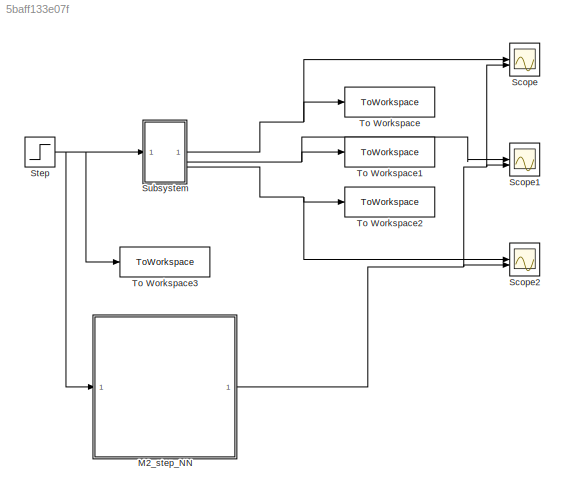
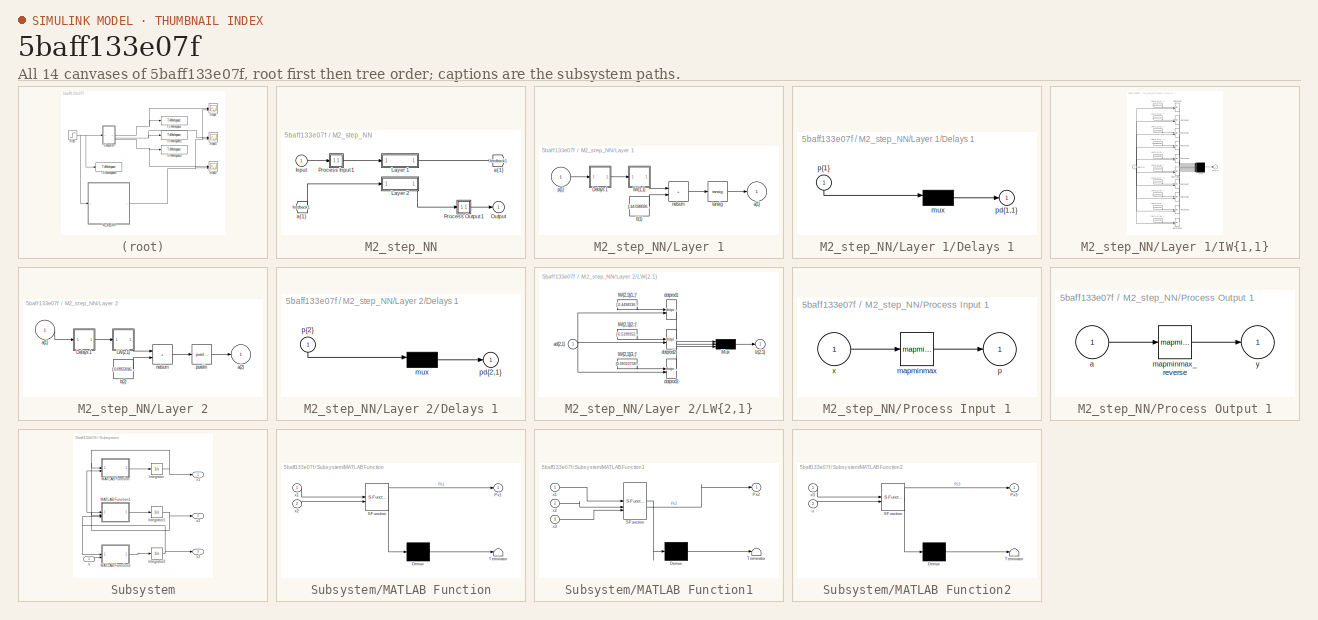
[diagram: thumbnail index - all 14 canvases of the model, root first then tree order]
MODEL slx_5baff133e07f
KIND model
CONFIG AbsTol = auto
CONFIG EnableMultiTasking = off
CONFIG FixedStep = auto
CONFIG MaxStep = auto
CONFIG MinStep = auto
CONFIG RelTol = 1e-3
CONFIG SampleTimeConstraint = Unconstrained
CONFIG SolverName = VariableStepAuto
CONFIG StartTime = 0.0
CONFIG StopTime = 10.0
BLOCK [SubSystem] M2_step_NN
BLOCK [From] M2_step_NN/ a{1} 
  GotoTag = feedback1
BLOCK [Inport] M2_step_NN/Input
  PortDimensions = 1
BLOCK [SubSystem] M2_step_NN/Layer 1
BLOCK [SubSystem] M2_step_NN/Layer 1/Delays 1
BLOCK [Mux] M2_step_NN/Layer 1/Delays 1/mux
  Inputs = 1
BLOCK [Outport] M2_step_NN/Layer 1/Delays 1/pd{1,1}
BLOCK [Inport] M2_step_NN/Layer 1/Delays 1/p{1}
  NameLocation = left
  PortDimensions = 1
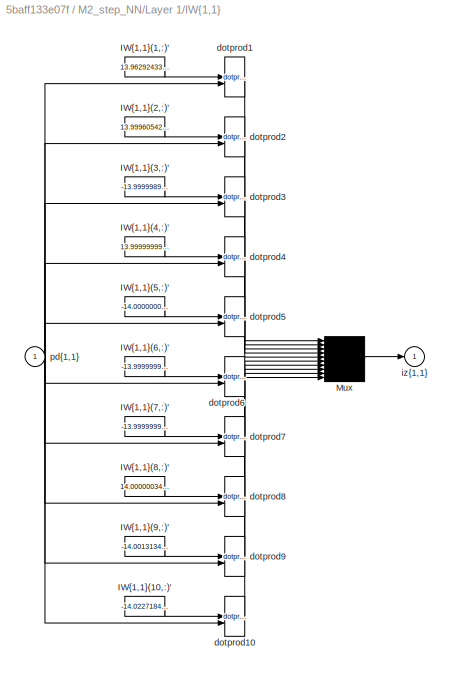
BLOCK [SubSystem] M2_step_NN/Layer 1/IW{1,1}
BLOCK [Constant] M2_step_NN/Layer 1/IW{1,1}/IW{1,1}(1,:)'
  Value = 13.9629243373705609343460309901274740695953369140625
BLOCK [Constant] M2_step_NN/Layer 1/IW{1,1}/IW{1,1}(10,:)'
  Value = -14.0227184452584463514313029008917510509490966796875
BLOCK [Constant] M2_step_NN/Layer 1/IW{1,1}/IW{1,1}(2,:)'
  Value = 13.9996054288032834023169925785623490810394287109375
BLOCK [Constant] M2_step_NN/Layer 1/IW{1,1}/IW{1,1}(3,:)'
  Value = -13.9999989318374815638890140689909458160400390625
BLOCK [Constant] M2_step_NN/Layer 1/IW{1,1}/IW{1,1}(4,:)'
  Value = 13.999999997360529135903561837039887905120849609375
BLOCK [Constant] M2_step_NN/Layer 1/IW{1,1}/IW{1,1}(5,:)'
  Value = -14.0000000000076312289820634759962558746337890625
BLOCK [Constant] M2_step_NN/Layer 1/IW{1,1}/IW{1,1}(6,:)'
  Value = -13.999999999987590371119949850253760814666748046875
BLOCK [Constant] M2_step_NN/Layer 1/IW{1,1}/IW{1,1}(7,:)'
  Value = -13.999999996540839930503352661617100238800048828125
BLOCK [Constant] M2_step_NN/Layer 1/IW{1,1}/IW{1,1}(8,:)'
  Value = 14.00000034104697732573185930959880352020263671875
BLOCK [Constant] M2_step_NN/Layer 1/IW{1,1}/IW{1,1}(9,:)'
  Value = -14.00131346372154439450241625308990478515625
BLOCK [Mux] M2_step_NN/Layer 1/IW{1,1}/Mux
  Inputs = 10
BLOCK [Reference] M2_step_NN/Layer 1/IW{1,1}/dotprod1  REF=neural/Weight Functions/dotprod
  SourceBlock = neural/Weight Functions/dotprod
  SourceType = DOTPROD
BLOCK [Reference] M2_step_NN/Layer 1/IW{1,1}/dotprod10  REF=neural/Weight Functions/dotprod
  SourceBlock = neural/Weight Functions/dotprod
  SourceType = DOTPROD
BLOCK [Reference] M2_step_NN/Layer 1/IW{1,1}/dotprod2  REF=neural/Weight Functions/dotprod
  SourceBlock = neural/Weight Functions/dotprod
  SourceType = DOTPROD
BLOCK [Reference] M2_step_NN/Layer 1/IW{1,1}/dotprod3  REF=neural/Weight Functions/dotprod
  SourceBlock = neural/Weight Functions/dotprod
  SourceType = DOTPROD
BLOCK [Reference] M2_step_NN/Layer 1/IW{1,1}/dotprod4  REF=neural/Weight Functions/dotprod
  SourceBlock = neural/Weight Functions/dotprod
  SourceType = DOTPROD
BLOCK [Reference] M2_step_NN/Layer 1/IW{1,1}/dotprod5  REF=neural/Weight Functions/dotprod
  SourceBlock = neural/Weight Functions/dotprod
  SourceType = DOTPROD
BLOCK [Reference] M2_step_NN/Layer 1/IW{1,1}/dotprod6  REF=neural/Weight Functions/dotprod
  SourceBlock = neural/Weight Functions/dotprod
  SourceType = DOTPROD
BLOCK [Reference] M2_step_NN/Layer 1/IW{1,1}/dotprod7  REF=neural/Weight Functions/dotprod
  SourceBlock = neural/Weight Functions/dotprod
  SourceType = DOTPROD
BLOCK [Reference] M2_step_NN/Layer 1/IW{1,1}/dotprod8  REF=neural/Weight Functions/dotprod
  SourceBlock = neural/Weight Functions/dotprod
  SourceType = DOTPROD
BLOCK [Reference] M2_step_NN/Layer 1/IW{1,1}/dotprod9  REF=neural/Weight Functions/dotprod
  SourceBlock = neural/Weight Functions/dotprod
  SourceType = DOTPROD
BLOCK [Outport] M2_step_NN/Layer 1/IW{1,1}/iz{1,1}
BLOCK [Inport] M2_step_NN/Layer 1/IW{1,1}/pd{1,1}
  PortDimensions = 1
BLOCK [Outport] M2_step_NN/Layer 1/a{1}
  InitialOutput = [0;0;0;0;0;0;0;0;0;0]
BLOCK [Constant] M2_step_NN/Layer 1/b{1}
  Value = [-14.0380261568897726220939148333854973316192626953125;-10.889281657369526357115319115109741687774658203125;7.77777884631047555785698932595551013946533203125;-4.666666669303321413053708965890109539031982421875;1.555555555548202573135085913236252963542938232421875;-1.5555555555661033650949320872314274311065673828125;-4.66666667010798352777101172250695526599884033203125;7.777777422985467481453270011...<+125ch>
BLOCK [Sum] M2_step_NN/Layer 1/netsum
  IconShape = rectangular
  InputSameDT = on
  Inputs = 2
  OutDataTypeStr = Inherit: Same as first input
  SaturateOnIntegerOverflow = on
BLOCK [Inport] M2_step_NN/Layer 1/p{1}
  PortDimensions = 1
BLOCK [Reference] M2_step_NN/Layer 1/tansig  REF=neural/Transfer Functions/tansig
  SourceBlock = neural/Transfer Functions/tansig
  SourceType = TANSIG
BLOCK [SubSystem] M2_step_NN/Layer 2
BLOCK [SubSystem] M2_step_NN/Layer 2/Delays 1
BLOCK [Mux] M2_step_NN/Layer 2/Delays 1/mux
  Inputs = 1
BLOCK [Outport] M2_step_NN/Layer 2/Delays 1/pd{2,1}
BLOCK [Inport] M2_step_NN/Layer 2/Delays 1/p{2}
  NameLocation = left
  PortDimensions = 10
BLOCK [SubSystem] M2_step_NN/Layer 2/LW{2,1}
BLOCK [Constant] M2_step_NN/Layer 2/LW{2,1}/IW{2,1}(1,:)'
  Value = [-0.44982362980774859284593958363984711468219757080078125;-0.10189517144269533144296246973681263625621795654296875;0.25682911316904777354608313544304110109806060791015625;0.218601639573847983388787952208076603710651397705078125;-0.5052279260442962272037448201444931328296661376953125;-0.446107972848463651960315701217041350901126861572265625;-0.750542629301818475795471385936252772808074951171875;-0....<+162ch>
BLOCK [Constant] M2_step_NN/Layer 2/LW{2,1}/IW{2,1}(2,:)'
  Value = [-0.51993521148048227331628368119709193706512451171875;-0.287788801963882845402764587561250664293766021728515625;0.3786754786257857663400727687985636293888092041015625;-0.27963465392144748467018189330701716244220733642578125;-0.84255273071878022950187414608080871403217315673828125;-0.29758974065047116841498109351960010826587677001953125;0.126743279859098334494404980432591401040554046630859375;0.21...<+167ch>
BLOCK [Constant] M2_step_NN/Layer 2/LW{2,1}/IW{2,1}(3,:)'
  Value = [0.09310758479608209625677517351505230180919170379638671875;-0.2037382416228475656705398932899697683751583099365234375;0.90183039721272117983374982941313646733760833740234375;0.6637426779768225149069849067018367350101470947265625;-0.8315058946878834955640513726393692195415496826171875;-0.396546444907908579580180230550467967987060546875;-0.809254614061559518489730180590413510799407958984375;0.71864...<+158ch>
BLOCK [Mux] M2_step_NN/Layer 2/LW{2,1}/Mux
  Inputs = 3
BLOCK [Inport] M2_step_NN/Layer 2/LW{2,1}/ad{2,1}
  PortDimensions = 10
BLOCK [Reference] M2_step_NN/Layer 2/LW{2,1}/dotprod1  REF=neural/Weight Functions/dotprod
  SourceBlock = neural/Weight Functions/dotprod
  SourceType = DOTPROD
BLOCK [Reference] M2_step_NN/Layer 2/LW{2,1}/dotprod2  REF=neural/Weight Functions/dotprod
  SourceBlock = neural/Weight Functions/dotprod
  SourceType = DOTPROD
BLOCK [Reference] M2_step_NN/Layer 2/LW{2,1}/dotprod3  REF=neural/Weight Functions/dotprod
  SourceBlock = neural/Weight Functions/dotprod
  SourceType = DOTPROD
BLOCK [Outport] M2_step_NN/Layer 2/LW{2,1}/lz{2,1}
BLOCK [Inport] M2_step_NN/Layer 2/a{1} 
  PortDimensions = 10
BLOCK [Outport] M2_step_NN/Layer 2/a{2}
  InitialOutput = [0;0;0]
BLOCK [Constant] M2_step_NN/Layer 2/b{2}
  Value = [-0.095591649651702415013687641476280987262725830078125;0.49322793347682514220053917597397230565547943115234375;-0.85792583011722045593927532536326907575130462646484375]
BLOCK [Sum] M2_step_NN/Layer 2/netsum
  IconShape = rectangular
  InputSameDT = on
  Inputs = 2
  OutDataTypeStr = Inherit: Same as first input
  SaturateOnIntegerOverflow = on
BLOCK [Reference] M2_step_NN/Layer 2/purelin  REF=neural/Transfer Functions/purelin
  SourceBlock = neural/Transfer Functions/purelin
  SourceType = PURELIN
BLOCK [Outport] M2_step_NN/Output
  InitialOutput = [0;0;0]
BLOCK [SubSystem] M2_step_NN/Process Input 1
BLOCK [Reference] M2_step_NN/Process Input 1/mapminmax  REF=neural/Processing Functions/mapminmax
  SourceBlock = neural/Processing Functions/mapminmax
  SourceType = MAPMINMAX Preprocess
BLOCK [Outport] M2_step_NN/Process Input 1/p
  PortDimensions = 1
BLOCK [Inport] M2_step_NN/Process Input 1/x
  PortDimensions = 1
BLOCK [SubSystem] M2_step_NN/Process Output 1
BLOCK [Inport] M2_step_NN/Process Output 1/a
  PortDimensions = 3
BLOCK [Reference] M2_step_NN/Process Output 1/mapminmax_reverse  REF=neural/Processing Functions/mapminmax_reverse
  SourceBlock = neural/Processing Functions/mapminmax_reverse
  SourceType = MAPMINMAX Reverse Process
BLOCK [Outport] M2_step_NN/Process Output 1/y
  PortDimensions = 3
BLOCK [Goto] M2_step_NN/a{1}
  GotoTag = feedback1
BLOCK [Scope] Scope
  Floating = off
  NumInputPorts = 2
  ScopeSpecificationString = Simulink.scopes.TimeScopeBlockCfg('CurrentConfiguration', extmgr.ConfigurationSet(extmgr.Configuration('Core','General UI',true),extmgr.Configuration('Core','Source UI',true),extmgr.Configuration('Sources','WiredSimulink',true,'DataLoggingVariableName','ScopeData1'),extmgr.Configuration('Visuals','Time Domain',true,'SerializedDisplays',{struct('MinYLimReal','-49843.40787','MaxYLimReal','446732.937...<+1440ch>
BLOCK [Scope] Scope1
  Floating = off
  NumInputPorts = 2
  ScopeSpecificationString = Simulink.scopes.TimeScopeBlockCfg('CurrentConfiguration', extmgr.ConfigurationSet(extmgr.Configuration('Core','General UI',true),extmgr.Configuration('Core','Source UI',true),extmgr.Configuration('Sources','WiredSimulink',true,'DataLoggingVariableName','ScopeData2'),extmgr.Configuration('Visuals','Time Domain',true,'SerializedDisplays',{struct('MinYLimReal','-8466714.46764','MaxYLimReal','1810042....<+1452ch>
BLOCK [Scope] Scope2
  Floating = off
  NumInputPorts = 2
  ScopeSpecificationString = Simulink.scopes.TimeScopeBlockCfg('CurrentConfiguration', extmgr.ConfigurationSet(extmgr.Configuration('Core','General UI',true),extmgr.Configuration('Core','Source UI',true),extmgr.Configuration('Sources','WiredSimulink',true),extmgr.Configuration('Visuals','Time Domain',true,'SerializedDisplays',{struct('MinYLimReal','-49823.00015','MaxYLimReal','446730.67006','YLabelReal','','MinYLimMag','   0....<+1401ch>
BLOCK [Step] Step
  SampleTime = 0
BLOCK [SubSystem] Subsystem
BLOCK [Integrator] Subsystem/Integrator
BLOCK [Integrator] Subsystem/Integrator1
BLOCK [Integrator] Subsystem/Integrator2
BLOCK [SubSystem] Subsystem/MATLAB Function
  ErrorFcn = Stateflow.Translate.translate
  LibrarySourceBlock = simulink/User-Defined\nFunctions/MATLAB Function
  PermitHierarchicalResolution = ExplicitOnly
  SFBlockType = MATLAB Function
  TreatAsAtomicUnit = on
BLOCK [Demux] Subsystem/MATLAB Function/ Demux 
  Outputs = 1
BLOCK [S-Function] Subsystem/MATLAB Function/ SFunction 
  EnableBusSupport = on
  FunctionName = sf_sfun
  PortCounts = [2 2]
  SFcnIsStateOwnerBlock = off
  SFunctionDeploymentMode = off
  Tag = Stateflow S-Function 2
BLOCK [Terminator] Subsystem/MATLAB Function/ Terminator 
BLOCK [Outport] Subsystem/MATLAB Function/Px1
BLOCK [Inport] Subsystem/MATLAB Function/x1
BLOCK [Inport] Subsystem/MATLAB Function/x2
  Port = 2
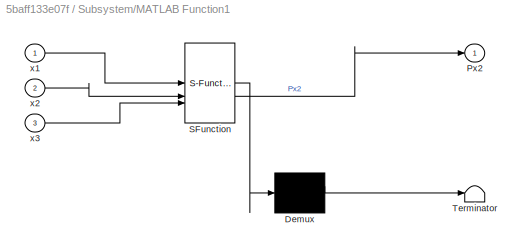
BLOCK [SubSystem] Subsystem/MATLAB Function1
  ErrorFcn = Stateflow.Translate.translate
  LibrarySourceBlock = simulink/User-Defined\nFunctions/MATLAB Function
  PermitHierarchicalResolution = ExplicitOnly
  SFBlockType = MATLAB Function
  TreatAsAtomicUnit = on
BLOCK [Demux] Subsystem/MATLAB Function1/ Demux 
  Outputs = 1
BLOCK [S-Function] Subsystem/MATLAB Function1/ SFunction 
  EnableBusSupport = on
  FunctionName = sf_sfun
  PortCounts = [3 2]
  SFcnIsStateOwnerBlock = off
  SFunctionDeploymentMode = off
  Tag = Stateflow S-Function 1
BLOCK [Terminator] Subsystem/MATLAB Function1/ Terminator 
BLOCK [Outport] Subsystem/MATLAB Function1/Px2
BLOCK [Inport] Subsystem/MATLAB Function1/x1
BLOCK [Inport] Subsystem/MATLAB Function1/x2
  Port = 2
BLOCK [Inport] Subsystem/MATLAB Function1/x3
  Port = 3
BLOCK [SubSystem] Subsystem/MATLAB Function2
  ErrorFcn = Stateflow.Translate.translate
  LibrarySourceBlock = simulink/User-Defined\nFunctions/MATLAB Function
  PermitHierarchicalResolution = ExplicitOnly
  SFBlockType = MATLAB Function
  TreatAsAtomicUnit = on
BLOCK [Demux] Subsystem/MATLAB Function2/ Demux 
  Outputs = 1
BLOCK [S-Function] Subsystem/MATLAB Function2/ SFunction 
  EnableBusSupport = on
  FunctionName = sf_sfun
  PortCounts = [2 2]
  SFcnIsStateOwnerBlock = off
  SFunctionDeploymentMode = off
  Tag = Stateflow S-Function 3
BLOCK [Terminator] Subsystem/MATLAB Function2/ Terminator 
BLOCK [Outport] Subsystem/MATLAB Function2/Px3
BLOCK [Inport] Subsystem/MATLAB Function2/u
  Port = 2
BLOCK [Inport] Subsystem/MATLAB Function2/x3
BLOCK [Inport] Subsystem/u
BLOCK [Outport] Subsystem/x1
BLOCK [Outport] Subsystem/x2
  Port = 2
BLOCK [Outport] Subsystem/x3
  Port = 3
BLOCK [ToWorkspace] To Workspace
  FixptAsFi = on
  MaxDataPoints = inf
  SampleTime = -1
  SaveFormat = Structure With Time
  VariableName = x1
BLOCK [ToWorkspace] To Workspace1
  FixptAsFi = on
  MaxDataPoints = inf
  SampleTime = -1
  SaveFormat = Structure With Time
  VariableName = x2
BLOCK [ToWorkspace] To Workspace2
  FixptAsFi = on
  MaxDataPoints = inf
  SampleTime = -1
  SaveFormat = Structure With Time
  VariableName = x3
BLOCK [ToWorkspace] To Workspace3
  FixptAsFi = on
  MaxDataPoints = inf
  SampleTime = -1
  SaveFormat = Structure With Time
  VariableName = u
LINE M2_step_NN/ a{1} :1 -> M2_step_NN/Layer 2:1
LINE M2_step_NN/Input:1 -> M2_step_NN/Process Input 1:1
LINE M2_step_NN/Layer 1/Delays 1/mux:1 -> M2_step_NN/Layer 1/Delays 1/pd{1,1}:1
LINE M2_step_NN/Layer 1/Delays 1/p{1}:1 -> M2_step_NN/Layer 1/Delays 1/mux:1
LINE M2_step_NN/Layer 1/Delays 1:1 -> M2_step_NN/Layer 1/IW{1,1}:1
LINE M2_step_NN/Layer 1/IW{1,1}/IW{1,1}(1,:)':1 -> M2_step_NN/Layer 1/IW{1,1}/dotprod1:1
LINE M2_step_NN/Layer 1/IW{1,1}/IW{1,1}(10,:)':1 -> M2_step_NN/Layer 1/IW{1,1}/dotprod10:1
LINE M2_step_NN/Layer 1/IW{1,1}/IW{1,1}(2,:)':1 -> M2_step_NN/Layer 1/IW{1,1}/dotprod2:1
LINE M2_step_NN/Layer 1/IW{1,1}/IW{1,1}(3,:)':1 -> M2_step_NN/Layer 1/IW{1,1}/dotprod3:1
LINE M2_step_NN/Layer 1/IW{1,1}/IW{1,1}(4,:)':1 -> M2_step_NN/Layer 1/IW{1,1}/dotprod4:1
LINE M2_step_NN/Layer 1/IW{1,1}/IW{1,1}(5,:)':1 -> M2_step_NN/Layer 1/IW{1,1}/dotprod5:1
LINE M2_step_NN/Layer 1/IW{1,1}/IW{1,1}(6,:)':1 -> M2_step_NN/Layer 1/IW{1,1}/dotprod6:1
LINE M2_step_NN/Layer 1/IW{1,1}/IW{1,1}(7,:)':1 -> M2_step_NN/Layer 1/IW{1,1}/dotprod7:1
LINE M2_step_NN/Layer 1/IW{1,1}/IW{1,1}(8,:)':1 -> M2_step_NN/Layer 1/IW{1,1}/dotprod8:1
LINE M2_step_NN/Layer 1/IW{1,1}/IW{1,1}(9,:)':1 -> M2_step_NN/Layer 1/IW{1,1}/dotprod9:1
LINE M2_step_NN/Layer 1/IW{1,1}/Mux:1 -> M2_step_NN/Layer 1/IW{1,1}/iz{1,1}:1
LINE M2_step_NN/Layer 1/IW{1,1}/dotprod10:1 -> M2_step_NN/Layer 1/IW{1,1}/Mux:10
LINE M2_step_NN/Layer 1/IW{1,1}/dotprod1:1 -> M2_step_NN/Layer 1/IW{1,1}/Mux:1
LINE M2_step_NN/Layer 1/IW{1,1}/dotprod2:1 -> M2_step_NN/Layer 1/IW{1,1}/Mux:2
LINE M2_step_NN/Layer 1/IW{1,1}/dotprod3:1 -> M2_step_NN/Layer 1/IW{1,1}/Mux:3
LINE M2_step_NN/Layer 1/IW{1,1}/dotprod4:1 -> M2_step_NN/Layer 1/IW{1,1}/Mux:4
LINE M2_step_NN/Layer 1/IW{1,1}/dotprod5:1 -> M2_step_NN/Layer 1/IW{1,1}/Mux:5
LINE M2_step_NN/Layer 1/IW{1,1}/dotprod6:1 -> M2_step_NN/Layer 1/IW{1,1}/Mux:6
LINE M2_step_NN/Layer 1/IW{1,1}/dotprod7:1 -> M2_step_NN/Layer 1/IW{1,1}/Mux:7
LINE M2_step_NN/Layer 1/IW{1,1}/dotprod8:1 -> M2_step_NN/Layer 1/IW{1,1}/Mux:8
LINE M2_step_NN/Layer 1/IW{1,1}/dotprod9:1 -> M2_step_NN/Layer 1/IW{1,1}/Mux:9
NET M2_step_NN/Layer 1/IW{1,1}/pd{1,1}:1 -> M2_step_NN/Layer 1/IW{1,1}/dotprod10:2, M2_step_NN/Layer 1/IW{1,1}/dotprod1:2, M2_step_NN/Layer 1/IW{1,1}/dotprod2:2, M2_step_NN/Layer 1/IW{1,1}/dotprod3:2, M2_step_NN/Layer 1/IW{1,1}/dotprod4:2, M2_step_NN/Layer 1/IW{1,1}/dotprod5:2, M2_step_NN/Layer 1/IW{1,1}/dotprod6:2, M2_step_NN/Layer 1/IW{1,1}/dotprod7:2, M2_step_NN/Layer 1/IW{1,1}/dotprod8:2, M2_step_NN/Layer 1/IW{1,1}/dotprod9:2
LINE M2_step_NN/Layer 1/IW{1,1}:1 -> M2_step_NN/Layer 1/netsum:1
LINE M2_step_NN/Layer 1/b{1}:1 -> M2_step_NN/Layer 1/netsum:2
LINE M2_step_NN/Layer 1/netsum:1 -> M2_step_NN/Layer 1/tansig:1
LINE M2_step_NN/Layer 1/p{1}:1 -> M2_step_NN/Layer 1/Delays 1:1
LINE M2_step_NN/Layer 1/tansig:1 -> M2_step_NN/Layer 1/a{1}:1
LINE M2_step_NN/Layer 1:1 -> M2_step_NN/a{1}:1
LINE M2_step_NN/Layer 2/Delays 1/mux:1 -> M2_step_NN/Layer 2/Delays 1/pd{2,1}:1
LINE M2_step_NN/Layer 2/Delays 1/p{2}:1 -> M2_step_NN/Layer 2/Delays 1/mux:1
LINE M2_step_NN/Layer 2/Delays 1:1 -> M2_step_NN/Layer 2/LW{2,1}:1
LINE M2_step_NN/Layer 2/LW{2,1}/IW{2,1}(1,:)':1 -> M2_step_NN/Layer 2/LW{2,1}/dotprod1:1
LINE M2_step_NN/Layer 2/LW{2,1}/IW{2,1}(2,:)':1 -> M2_step_NN/Layer 2/LW{2,1}/dotprod2:1
LINE M2_step_NN/Layer 2/LW{2,1}/IW{2,1}(3,:)':1 -> M2_step_NN/Layer 2/LW{2,1}/dotprod3:1
LINE M2_step_NN/Layer 2/LW{2,1}/Mux:1 -> M2_step_NN/Layer 2/LW{2,1}/lz{2,1}:1
NET M2_step_NN/Layer 2/LW{2,1}/ad{2,1}:1 -> M2_step_NN/Layer 2/LW{2,1}/dotprod1:2, M2_step_NN/Layer 2/LW{2,1}/dotprod2:2, M2_step_NN/Layer 2/LW{2,1}/dotprod3:2
LINE M2_step_NN/Layer 2/LW{2,1}/dotprod1:1 -> M2_step_NN/Layer 2/LW{2,1}/Mux:1
LINE M2_step_NN/Layer 2/LW{2,1}/dotprod2:1 -> M2_step_NN/Layer 2/LW{2,1}/Mux:2
LINE M2_step_NN/Layer 2/LW{2,1}/dotprod3:1 -> M2_step_NN/Layer 2/LW{2,1}/Mux:3
LINE M2_step_NN/Layer 2/LW{2,1}:1 -> M2_step_NN/Layer 2/netsum:1
LINE M2_step_NN/Layer 2/a{1} :1 -> M2_step_NN/Layer 2/Delays 1:1
LINE M2_step_NN/Layer 2/b{2}:1 -> M2_step_NN/Layer 2/netsum:2
LINE M2_step_NN/Layer 2/netsum:1 -> M2_step_NN/Layer 2/purelin:1
LINE M2_step_NN/Layer 2/purelin:1 -> M2_step_NN/Layer 2/a{2}:1
LINE M2_step_NN/Layer 2:1 -> M2_step_NN/Process Output 1:1
LINE M2_step_NN/Process Input 1/mapminmax:1 -> M2_step_NN/Process Input 1/p:1
LINE M2_step_NN/Process Input 1/x:1 -> M2_step_NN/Process Input 1/mapminmax:1
LINE M2_step_NN/Process Input 1:1 -> M2_step_NN/Layer 1:1
LINE M2_step_NN/Process Output 1/a:1 -> M2_step_NN/Process Output 1/mapminmax_reverse:1
LINE M2_step_NN/Process Output 1/mapminmax_reverse:1 -> M2_step_NN/Process Output 1/y:1
LINE M2_step_NN/Process Output 1:1 -> M2_step_NN/Output:1
NET M2_step_NN:1 -> Scope1:2, Scope2:2, Scope:2
NET Step:1 -> M2_step_NN:1, Subsystem:1, To Workspace3:1
NET Subsystem/Integrator1:1 -> Subsystem/MATLAB Function1:2, Subsystem/MATLAB Function:2, Subsystem/x2:1
NET Subsystem/Integrator2:1 -> Subsystem/MATLAB Function1:3, Subsystem/MATLAB Function2:1, Subsystem/x3:1
NET Subsystem/Integrator:1 -> Subsystem/MATLAB Function1:1, Subsystem/MATLAB Function:1, Subsystem/x1:1
LINE Subsystem/MATLAB Function1:1 -> Subsystem/Integrator1:1
LINE Subsystem/MATLAB Function2:1 -> Subsystem/Integrator2:1
LINE Subsystem/MATLAB Function:1 -> Subsystem/Integrator:1
LINE Subsystem/u:1 -> Subsystem/MATLAB Function2:2
NET Subsystem:1 -> Scope:1, To Workspace:1
NET Subsystem:2 -> Scope1:1, To Workspace1:1
NET Subsystem:3 -> Scope2:1, To Workspace2:1
note: NET lines group one-source signal fan-out (src -> all destinations, sorted); 1:1 wires keep LINE
CHART Subsystem/MATLAB Function states=1 transitions=1
  STATE_LABEL 'eML_blk_kernel()'
  STATE_LABEL 'SCRIPT:\nfunction Px1 = fcn(x1,x2)\njt = 0.03;\nBm = 1.1*10^(-3);\nqm = 7.96*10^(-7);\ncf = 0.104;\nps = 10^(7);\n\nPx1 = (1/jt)*(-Bm*x1+qm*x2-qm*cf*ps);\n'
CHART Subsystem/MATLAB Function2 states=1 transitions=1
  STATE_LABEL 'eML_blk_kernel()'
  STATE_LABEL 'SCRIPT:\nfunction Px3 = fcn(x3,u)\n\nTr = 0.1;\nkr = 1.4*10^(-4);\nkq = 1.66;\n\n\nPx3 = (1/Tr)*(-x3+(kr/kq)*u);\n'
CHART Subsystem/MATLAB Function1 states=1 transitions=1
  STATE_LABEL 'eML_blk_kernel()'
  STATE_LABEL 'SCRIPT:\nfunction Px2 = fcn(x1,x2,x3)\n\nqm = 7.96*10^(-7);\nBe = 1.391*10^(9);\nvo = 1.2*10^(-4);\ncim = 1.69*10^(-11);\ncd = 0.61;\nw = 8*pi*10^(-3);\nP = 850;\nps = 10^(7);\n\n\nPx2 = ((2*Be)/vo)*(-qm*x1-cim*x2-cd*w*x3*sqrt((1/P)*(ps-x2)));\n'
CHART  states=0 transitions=0
CHART  states=0 transitions=0
CHART  states=0 transitions=0
